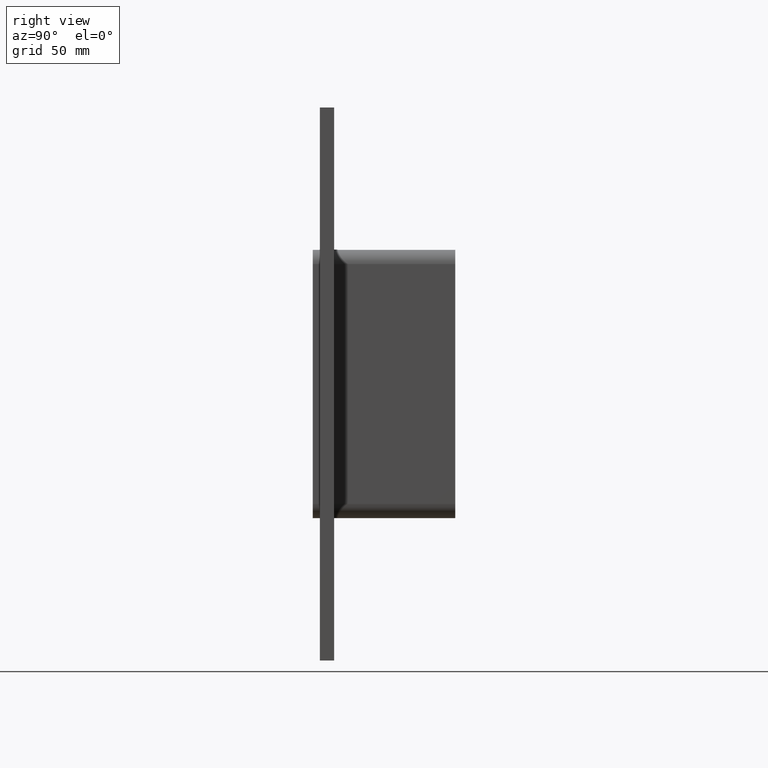
[diagram: clean part render]
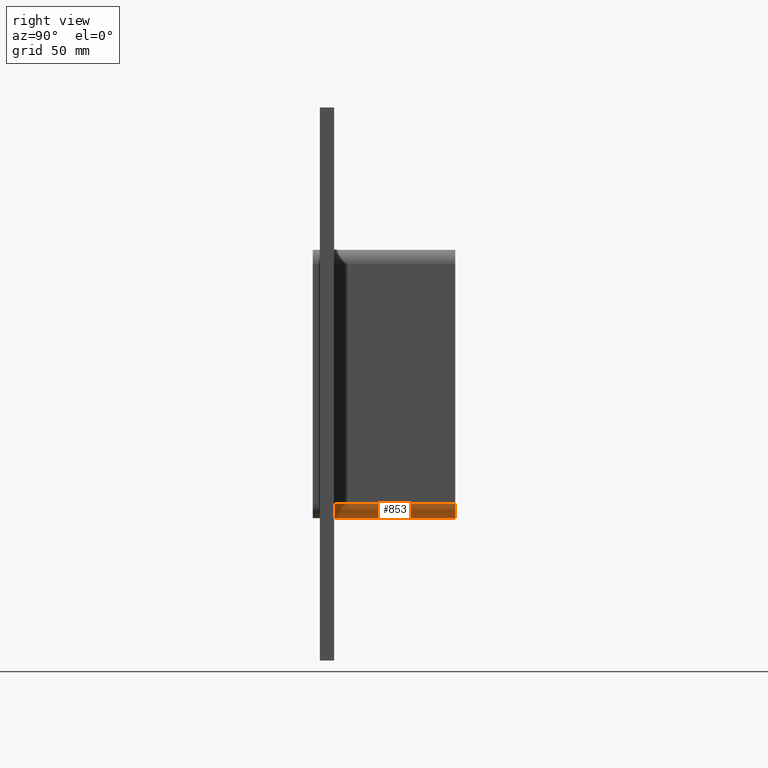
[diagram: same view with one face highlighted and labeled with its STEP entity id]
A machine part, right view. The second image highlights one B-rep face of the part: STEP entity #853.
In plain terms, the highlighted cylindrical surface (edge-blend (fillet) strip) has radius 6 mm, axis along (0, 1, 0).
Its self-contained STEP definition (entity closure, byte-faithful):
#366=CARTESIAN_POINT('',(30.250000000000004,6.000000000000001,-56.5));
#367=VERTEX_POINT('',#366);
#374=CARTESIAN_POINT('',(36.250000000000007,6.000000000000001,-50.500000000000007));
#375=VERTEX_POINT('',#374);
#376=CARTESIAN_POINT('',(30.250000000000004,6.000000000000001,-50.500000000000007));
#377=DIRECTION('',(0.0,1.0,0.0));
#378=DIRECTION('',(0.707106781186547,0.0,-0.707106781186547));
#379=AXIS2_PLACEMENT_3D('',#376,#377,#378);
#380=CIRCLE('',#379,6.0);
#381=EDGE_CURVE('',#375,#367,#380,.T.);
#762=CARTESIAN_POINT('',(36.250000000000007,57.0,-50.500000000000007));
#763=VERTEX_POINT('',#762);
#764=CARTESIAN_POINT('',(36.250000000000007,57.0,-50.500000000000007));
#765=DIRECTION('',(0.0,-1.0,0.0));
#766=VECTOR('',#765,51.0);
#767=LINE('',#764,#766);
#768=EDGE_CURVE('',#763,#375,#767,.T.);
#829=CARTESIAN_POINT('',(30.250000000000004,0.0,-50.500000000000007));
#830=DIRECTION('',(0.0,1.0,0.0));
#831=DIRECTION('',(0.707106781186547,0.0,-0.707106781186547));
#832=AXIS2_PLACEMENT_3D('',#829,#830,#831);
#833=CYLINDRICAL_SURFACE('',#832,6.000000000000001);
#834=ORIENTED_EDGE('',*,*,#381,.T.);
#835=CARTESIAN_POINT('',(30.250000000000004,57.0,-56.5));
#836=VERTEX_POINT('',#835);
#837=CARTESIAN_POINT('',(30.250000000000004,6.000000000000001,-56.5));
#838=DIRECTION('',(0.0,1.0,0.0));
#839=VECTOR('',#838,51.0);
#840=LINE('',#837,#839);
#841=EDGE_CURVE('',#367,#836,#840,.T.);
#842=ORIENTED_EDGE('',*,*,#841,.T.);
#843=CARTESIAN_POINT('',(30.250000000000004,57.0,-50.500000000000007));
#844=DIRECTION('',(0.0,-1.0,0.0));
#845=DIRECTION('',(0.707106781186547,0.0,-0.707106781186547));
#846=AXIS2_PLACEMENT_3D('',#843,#844,#845);
#847=CIRCLE('',#846,6.0);
#848=EDGE_CURVE('',#836,#763,#847,.T.);
#849=ORIENTED_EDGE('',*,*,#848,.T.);
#850=ORIENTED_EDGE('',*,*,#768,.T.);
#851=EDGE_LOOP('',(#834,#842,#849,#850));
#852=FACE_OUTER_BOUND('',#851,.T.);
#853=ADVANCED_FACE('',(#852),#833,.T.);